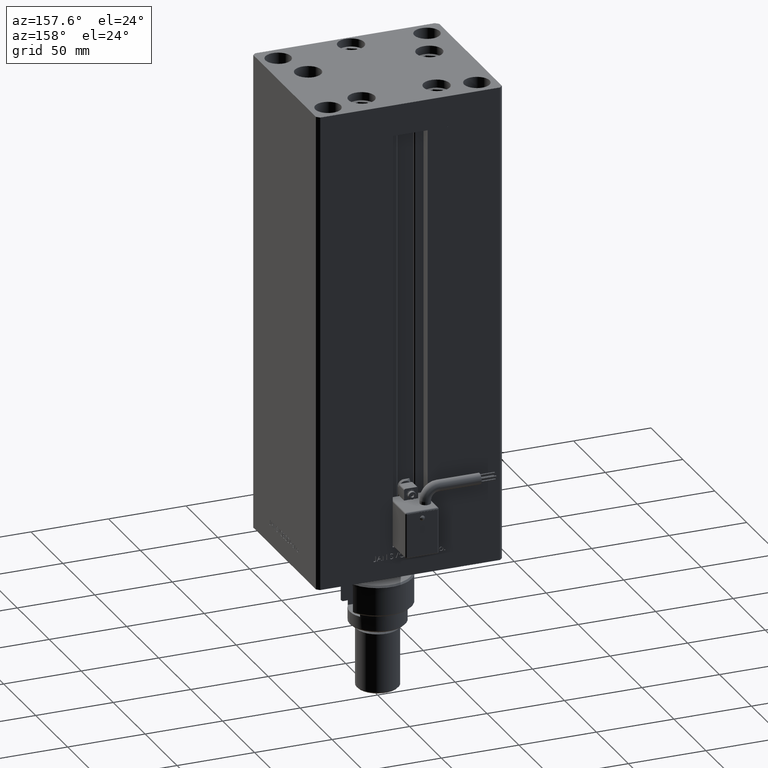
[diagram: clean part render]
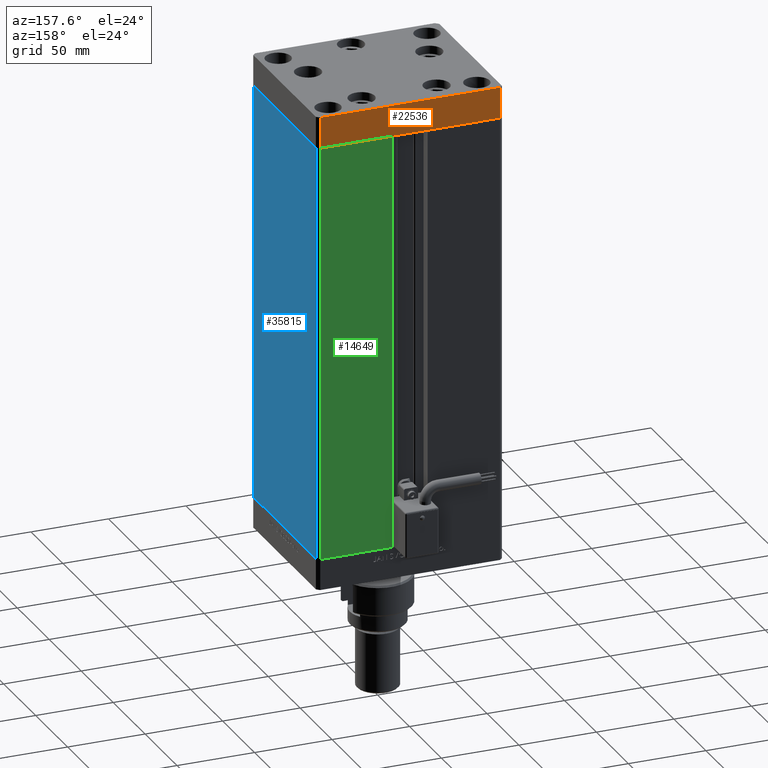
[diagram: same view with three faces highlighted in distinct colors, each labeled with its STEP entity id]
A machine part, auxiliary view with three faces highlighted in distinct colors.
Their STEP definitions:

[orange] entity #22536 — the highlighted planar face has unit normal (-0, 1, 0).
#255 = VECTOR ( 'NONE', #9307, 1000.000000000000000 ) ;
#1105 = DIRECTION ( 'NONE',  ( -1.000000000000000000, -2.392722035830079958E-16, 0.000000000000000000 ) ) ;
#1719 = VECTOR ( 'NONE', #1105, 1000.000000000000000 ) ;
#3825 = CARTESIAN_POINT ( 'NONE',  ( 57.99999999999993605, 51.00000000000000711, -20.00000000000000000 ) ) ;
#4753 = VERTEX_POINT ( 'NONE', #6741 ) ;
#5418 = VERTEX_POINT ( 'NONE', #29557 ) ;
#6741 = CARTESIAN_POINT ( 'NONE',  ( 57.99999999999993605, 51.00000000000000711, 0.000000000000000000 ) ) ;
#7388 = EDGE_CURVE ( 'NONE', #25442, #4753, #39614, .T. ) ;
#8206 = CARTESIAN_POINT ( 'NONE',  ( -57.99999999999999289, 50.99999999999997868, -20.00000000000000000 ) ) ;
#9190 = LINE ( 'NONE', #21588, #1719 ) ;
#9307 = DIRECTION ( 'NONE',  ( -1.000000000000000000, -2.392722035830079958E-16, 0.000000000000000000 ) ) ;
#11617 = ORIENTED_EDGE ( 'NONE', *, *, #25950, .T. ) ;
#12822 = EDGE_LOOP ( 'NONE', ( #50470, #24420, #24907, #11617 ) ) ;
#12936 = VECTOR ( 'NONE', #38829, 1000.000000000000000 ) ;
#13575 = PLANE ( 'NONE',  #32164 ) ;
#17673 = LINE ( 'NONE', #25748, #255 ) ;
#21588 = CARTESIAN_POINT ( 'NONE',  ( 57.99999999999993605, 51.00000000000000711, -20.00000000000000000 ) ) ;
#22536 = ADVANCED_FACE ( 'NONE', ( #50508 ), #13575, .T. ) ;
#24420 = ORIENTED_EDGE ( 'NONE', *, *, #7388, .F. ) ;
#24907 = ORIENTED_EDGE ( 'NONE', *, *, #44997, .T. ) ;
#25442 = VERTEX_POINT ( 'NONE', #3825 ) ;
#25748 = CARTESIAN_POINT ( 'NONE',  ( 57.99999999999993605, 51.00000000000000711, 0.000000000000000000 ) ) ;
#25950 = EDGE_CURVE ( 'NONE', #31441, #5418, #52950, .T. ) ;
#25990 = DIRECTION ( 'NONE',  ( -2.392722035830079958E-16, 1.000000000000000000, 0.000000000000000000 ) ) ;
#29557 = CARTESIAN_POINT ( 'NONE',  ( -57.99999999999999289, 50.99999999999997868, 0.000000000000000000 ) ) ;
#30569 = CARTESIAN_POINT ( 'NONE',  ( 57.99999999999993605, 51.00000000000000711, -20.00000000000000000 ) ) ;
#31441 = VERTEX_POINT ( 'NONE', #8206 ) ;
#32164 = AXIS2_PLACEMENT_3D ( 'NONE', #30569, #25990, #33812 ) ;
#32998 = DIRECTION ( 'NONE',  ( 0.000000000000000000, 0.000000000000000000, 1.000000000000000000 ) ) ;
#33812 = DIRECTION ( 'NONE',  ( -1.000000000000000000, -2.392722035830079958E-16, 0.000000000000000000 ) ) ;
#38829 = DIRECTION ( 'NONE',  ( 0.000000000000000000, 0.000000000000000000, 1.000000000000000000 ) ) ;
#39614 = LINE ( 'NONE', #43402, #12936 ) ;
#43402 = CARTESIAN_POINT ( 'NONE',  ( 57.99999999999993605, 51.00000000000000711, -20.00000000000000000 ) ) ;
#44997 = EDGE_CURVE ( 'NONE', #25442, #31441, #9190, .T. ) ;
#48384 = CARTESIAN_POINT ( 'NONE',  ( -57.99999999999999289, 50.99999999999997868, -20.00000000000000000 ) ) ;
#50470 = ORIENTED_EDGE ( 'NONE', *, *, #53322, .F. ) ;
#50508 = FACE_OUTER_BOUND ( 'NONE', #12822, .T. ) ;
#52059 = VECTOR ( 'NONE', #32998, 1000.000000000000000 ) ;
#52950 = LINE ( 'NONE', #48384, #52059 ) ;
#53322 = EDGE_CURVE ( 'NONE', #4753, #5418, #17673, .T. ) ;

[blue] entity #35815 — the highlighted planar face has unit normal (1, -0, 0).
#2743 = CARTESIAN_POINT ( 'NONE',  ( 59.99999999999998579, -49.00000000000000000, 268.5000000000000000 ) ) ;
#3360 = DIRECTION ( 'NONE',  ( -0.000000000000000000, -0.000000000000000000, -1.000000000000000000 ) ) ;
#4303 = FACE_OUTER_BOUND ( 'NONE', #42441, .T. ) ;
#4575 = DIRECTION ( 'NONE',  ( 1.000000000000000000, -2.832201593431521726E-16, 0.000000000000000000 ) ) ;
#4985 = ORIENTED_EDGE ( 'NONE', *, *, #14082, .F. ) ;
#5024 = LINE ( 'NONE', #46524, #41707 ) ;
#5684 = EDGE_CURVE ( 'NONE', #49360, #37339, #11181, .T. ) ;
#5917 = LINE ( 'NONE', #26136, #14927 ) ;
#7821 = VECTOR ( 'NONE', #3360, 1000.000000000000000 ) ;
#9043 = CARTESIAN_POINT ( 'NONE',  ( 60.00000000000001421, 49.00000000000000000, 268.5000000000000000 ) ) ;
#11181 = LINE ( 'NONE', #23323, #7821 ) ;
#14082 = EDGE_CURVE ( 'NONE', #48165, #37339, #5917, .T. ) ;
#14927 = VECTOR ( 'NONE', #17518, 1000.000000000000000 ) ;
#17518 = DIRECTION ( 'NONE',  ( -2.832201593431521726E-16, -1.000000000000000000, 0.000000000000000000 ) ) ;
#21486 = VECTOR ( 'NONE', #50280, 1000.000000000000000 ) ;
#23323 = CARTESIAN_POINT ( 'NONE',  ( 59.99999999999998579, -49.00000000000000000, 268.5000000000000000 ) ) ;
#24715 = EDGE_CURVE ( 'NONE', #41176, #48165, #5024, .T. ) ;
#26136 = CARTESIAN_POINT ( 'NONE',  ( 60.00000000000001421, 49.00000000000000000, 0.000000000000000000 ) ) ;
#29369 = DIRECTION ( 'NONE',  ( 2.832201593431521726E-16, 1.000000000000000000, 0.000000000000000000 ) ) ;
#30634 = CARTESIAN_POINT ( 'NONE',  ( 60.00000000000001421, 49.00000000000000000, 268.5000000000000000 ) ) ;
#34661 = DIRECTION ( 'NONE',  ( -0.000000000000000000, -0.000000000000000000, -1.000000000000000000 ) ) ;
#35815 = ADVANCED_FACE ( 'NONE', ( #4303 ), #45535, .T. ) ;
#37339 = VERTEX_POINT ( 'NONE', #41681 ) ;
#37689 = ORIENTED_EDGE ( 'NONE', *, *, #5684, .T. ) ;
#37966 = ORIENTED_EDGE ( 'NONE', *, *, #43422, .T. ) ;
#39727 = ORIENTED_EDGE ( 'NONE', *, *, #24715, .F. ) ;
#41176 = VERTEX_POINT ( 'NONE', #30634 ) ;
#41492 = CARTESIAN_POINT ( 'NONE',  ( 60.00000000000001421, 49.00000000000000000, 268.5000000000000000 ) ) ;
#41681 = CARTESIAN_POINT ( 'NONE',  ( 59.99999999999998579, -49.00000000000000000, 0.000000000000000000 ) ) ;
#41707 = VECTOR ( 'NONE', #34661, 1000.000000000000000 ) ;
#42441 = EDGE_LOOP ( 'NONE', ( #4985, #39727, #37966, #37689 ) ) ;
#43422 = EDGE_CURVE ( 'NONE', #41176, #49360, #45968, .T. ) ;
#43471 = CARTESIAN_POINT ( 'NONE',  ( 60.00000000000001421, 49.00000000000000000, 0.000000000000000000 ) ) ;
#45535 = PLANE ( 'NONE',  #48895 ) ;
#45968 = LINE ( 'NONE', #9043, #21486 ) ;
#46524 = CARTESIAN_POINT ( 'NONE',  ( 60.00000000000001421, 49.00000000000000000, 268.5000000000000000 ) ) ;
#48165 = VERTEX_POINT ( 'NONE', #43471 ) ;
#48895 = AXIS2_PLACEMENT_3D ( 'NONE', #41492, #4575, #29369 ) ;
#49360 = VERTEX_POINT ( 'NONE', #2743 ) ;
#50280 = DIRECTION ( 'NONE',  ( -2.832201593431521726E-16, -1.000000000000000000, 0.000000000000000000 ) ) ;

[green] entity #14649 — the highlighted planar face has unit normal (-0, -1, 0).
#1674 = DIRECTION ( 'NONE',  ( 1.000000000000000000, 0.000000000000000000, 0.000000000000000000 ) ) ;
#5488 = EDGE_CURVE ( 'NONE', #40101, #7151, #38693, .T. ) ;
#5557 = CARTESIAN_POINT ( 'NONE',  ( 57.99999999999999289, 51.00000000000000711, 268.5000000000000000 ) ) ;
#6353 = DIRECTION ( 'NONE',  ( -0.000000000000000000, -0.000000000000000000, -1.000000000000000000 ) ) ;
#7151 = VERTEX_POINT ( 'NONE', #28091 ) ;
#11594 = ORIENTED_EDGE ( 'NONE', *, *, #30563, .T. ) ;
#11998 = DIRECTION ( 'NONE',  ( -1.484255380514915423E-16, -1.000000000000000000, 0.000000000000000000 ) ) ;
#12067 = LINE ( 'NONE', #50073, #52247 ) ;
#14649 = ADVANCED_FACE ( 'NONE', ( #16588 ), #40570, .F. ) ;
#15360 = EDGE_CURVE ( 'NONE', #7151, #24329, #21771, .T. ) ;
#16588 = FACE_OUTER_BOUND ( 'NONE', #34051, .T. ) ;
#18394 = AXIS2_PLACEMENT_3D ( 'NONE', #28720, #11998, #44888 ) ;
#20260 = ORIENTED_EDGE ( 'NONE', *, *, #5488, .T. ) ;
#21112 = CARTESIAN_POINT ( 'NONE',  ( -11.25000000000000178, 51.00000000000000000, 268.5000000000000000 ) ) ;
#21771 = LINE ( 'NONE', #43309, #51984 ) ;
#24329 = VERTEX_POINT ( 'NONE', #45004 ) ;
#28091 = CARTESIAN_POINT ( 'NONE',  ( 57.99999999999999289, 51.00000000000000711, 0.000000000000000000 ) ) ;
#28720 = CARTESIAN_POINT ( 'NONE',  ( -11.25000000000000178, 51.00000000000000000, 268.5000000000000000 ) ) ;
#30349 = CARTESIAN_POINT ( 'NONE',  ( 11.24999999999999467, 51.00000000000000000, 268.5000000000000000 ) ) ;
#30563 = EDGE_CURVE ( 'NONE', #24329, #32028, #12067, .T. ) ;
#32028 = VERTEX_POINT ( 'NONE', #30349 ) ;
#33632 = VECTOR ( 'NONE', #6353, 1000.000000000000000 ) ;
#34051 = EDGE_LOOP ( 'NONE', ( #38919, #11594, #37276, #20260 ) ) ;
#37276 = ORIENTED_EDGE ( 'NONE', *, *, #48285, .T. ) ;
#38693 = LINE ( 'NONE', #5557, #33632 ) ;
#38919 = ORIENTED_EDGE ( 'NONE', *, *, #15360, .T. ) ;
#40101 = VERTEX_POINT ( 'NONE', #48197 ) ;
#40563 = VECTOR ( 'NONE', #1674, 1000.000000000000000 ) ;
#40570 = PLANE ( 'NONE',  #18394 ) ;
#40903 = DIRECTION ( 'NONE',  ( -0.000000000000000000, -0.000000000000000000, 1.000000000000000000 ) ) ;
#43309 = CARTESIAN_POINT ( 'NONE',  ( -11.25000000000000178, 51.00000000000000000, 0.000000000000000000 ) ) ;
#44888 = DIRECTION ( 'NONE',  ( 1.000000000000000000, -1.484255380514915423E-16, 0.000000000000000000 ) ) ;
#45004 = CARTESIAN_POINT ( 'NONE',  ( 11.25000000000000178, 51.00000000000000000, 0.000000000000000000 ) ) ;
#48197 = CARTESIAN_POINT ( 'NONE',  ( 57.99999999999999289, 51.00000000000000711, 268.5000000000000000 ) ) ;
#48285 = EDGE_CURVE ( 'NONE', #32028, #40101, #50466, .T. ) ;
#50073 = CARTESIAN_POINT ( 'NONE',  ( 11.25000000000000178, 51.00000000000000000, 0.000000000000000000 ) ) ;
#50466 = LINE ( 'NONE', #21112, #40563 ) ;
#50596 = DIRECTION ( 'NONE',  ( -1.000000000000000000, 1.484255380514915423E-16, 0.000000000000000000 ) ) ;
#51984 = VECTOR ( 'NONE', #50596, 1000.000000000000000 ) ;
#52247 = VECTOR ( 'NONE', #40903, 1000.000000000000000 ) ;